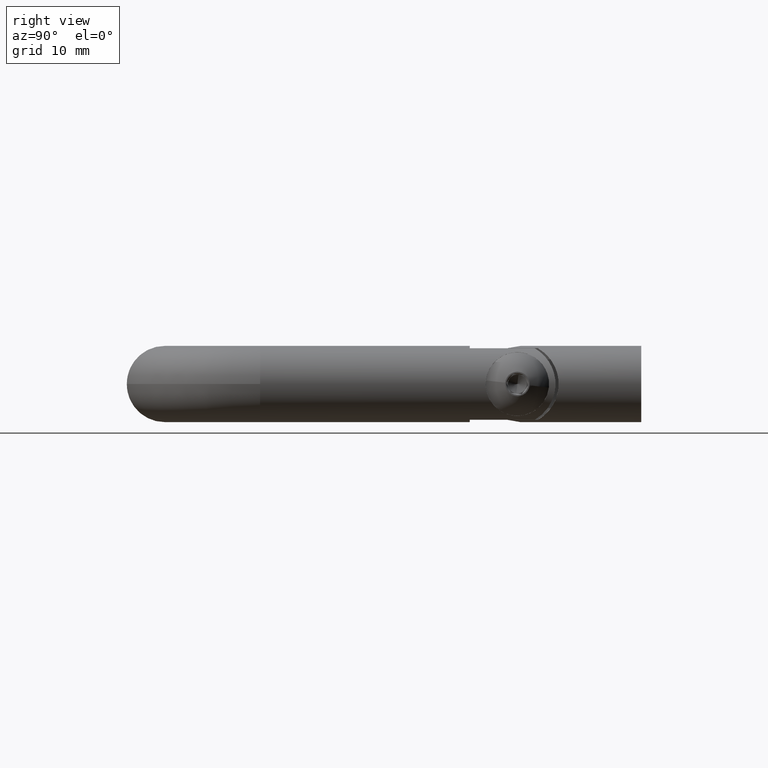
[diagram: clean part render]
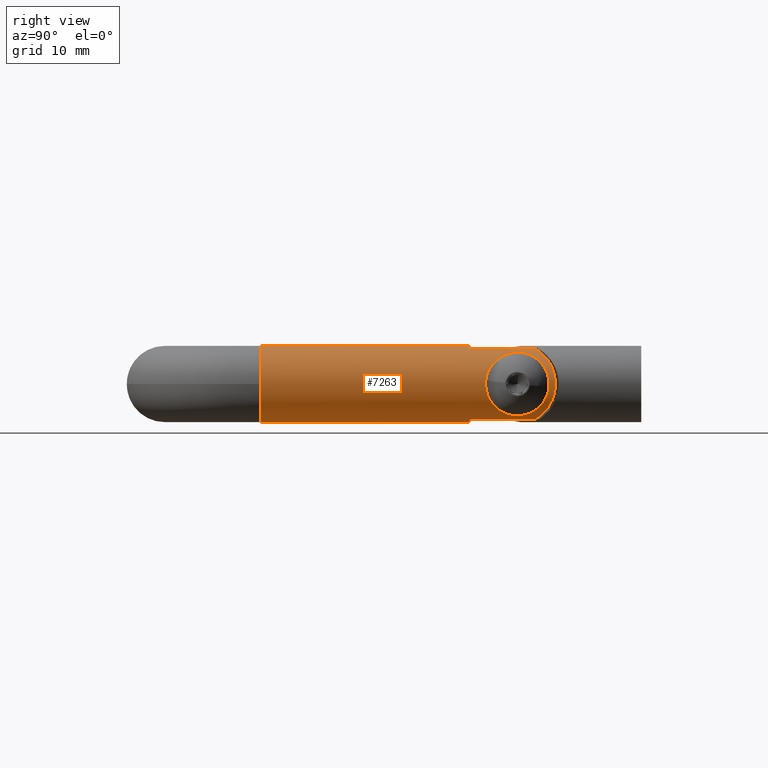
[diagram: same view with one face highlighted and labeled with its STEP entity id]
A machine part, right view. The second image highlights one B-rep face of the part: STEP entity #7263.
In plain terms, the highlighted cylindrical surface (partial cylindrical patch) has radius 6 mm, axis along (0, 1, 0).
Its self-contained STEP definition (entity closure, byte-faithful):
#21 = CARTESIAN_POINT ( 'NONE',  ( 78.56964446881282527, 54.14311813057525313, 4.824095889187161923 ) ) ;
#193 = VERTEX_POINT ( 'NONE', #8357 ) ;
#333 = DIRECTION ( 'NONE',  ( -1.156482317317871291E-14, 0.000000000000000000, -1.000000000000000000 ) ) ;
#396 = CARTESIAN_POINT ( 'NONE',  ( 80.76249996797402275, 60.21302730763526512, -1.702739235666504758 ) ) ;
#453 = AXIS2_PLACEMENT_3D ( 'NONE', #12255, #14675, #333 ) ;
#472 = B_SPLINE_CURVE_WITH_KNOTS ( 'NONE', 3,
 ( #1207, #2744, #14672, #7177, #12292, #21, #10800, #3852, #10205, #7683, #7785, #14871, #625, #1728, #4147, #11474, #4295, #7737, #11414, #1887, #1780, #5467, #6508, #522, #3052, #13810, #4245, #6461, #6657, #13604, #15026, #12544, #12599, #5418, #573, #12492, #10253, #10098, #10155, #13761, #4199, #8851, #7625 ),
 .UNSPECIFIED., .F., .F.,
 ( 4, 2, 2, 2, 2, 2, 2, 2, 2, 2, 1, 2, 2, 2, 2, 2, 2, 2, 2, 2, 2, 4 ),
 ( 0.01672688833371068634, 0.01724946163370980057, 0.01777203493370891133, 0.01881718153370712937, 0.01986232813370535089, 0.02090747473370356546, 0.02195262133370178698, 0.02299776793370000155, 0.02404291453369822307, 0.02456548783369733036, 0.02508806113369643764, 0.02561063443369554493, 0.02613320773369465222, 0.02717835433369286333, 0.02822350093369107443, 0.02926864753368928207, 0.03031379413368749318, 0.03135894073368570428, 0.03188151403368481851, 0.03240408733368392580, 0.03292666063368304002, 0.03344923393368215425 ),
 .UNSPECIFIED. ) ;
#522 = CARTESIAN_POINT ( 'NONE',  ( 80.94105680780467083, 50.57084699521421101, -0.8562631994393302692 ) ) ;
#569 = CARTESIAN_POINT ( 'NONE',  ( 79.60493739223004184, 60.23913157878650537, 3.857923218270355115 ) ) ;
#573 = CARTESIAN_POINT ( 'NONE',  ( 78.78079653344097721, 53.68065238534261852, -4.659924885212107348 ) ) ;
#622 = CARTESIAN_POINT ( 'NONE',  ( 80.43033175023697368, 60.97782991503839867, 2.570958540352991761 ) ) ;
#625 = CARTESIAN_POINT ( 'NONE',  ( 80.13219729960363225, 51.58178703072687910, 3.122079371656534263 ) ) ;
#662 = B_SPLINE_CURVE_WITH_KNOTS ( 'NONE', 3,
 ( #2365, #1182, #10780, #13260, #6009, #3605, #4813, #13160, #6075, #13371, #14534, #13419, #6228, #396, #14579, #2720, #8756, #9971, #2809, #2759, #4985, #7409, #14631, #3911, #7510, #10222, #8002, #1912, #11637, #4260, #9123, #4409, #6766, #12659, #11435, #15140, #892, #12768, #3268, #5635, #13884 ),
 .UNSPECIFIED., .F., .F.,
 ( 4, 2, 2, 2, 2, 2, 2, 2, 2, 1, 2, 2, 2, 2, 2, 2, 2, 2, 2, 2, 4 ),
 ( 6.992893892674702526E-18, 0.001045430520856925486, 0.002090861041713844033, 0.003136291562570763230, 0.004181722083427681126, 0.005227152604284599456, 0.006272583125141519521, 0.007318013645998437851, 0.007840728906426893546, 0.008363444166855351844, 0.008886159427283808407, 0.009408874687712268439, 0.01045430520856918157, 0.01149973572942609990, 0.01254516625028301476, 0.01359059677113993135, 0.01463602729199684968, 0.01515874255242530798, 0.01568145781285376628, 0.01620417307328222631, 0.01672688833371068634 ),
 .UNSPECIFIED. ) ;
#892 = CARTESIAN_POINT ( 'NONE',  ( 78.42394218862385458, 56.36495315353341340, 4.927495263026903771 ) ) ;
#1182 = CARTESIAN_POINT ( 'NONE',  ( 78.31662479035540514, 55.85442751033924935, -4.999999999999991118 ) ) ;
#1207 = CARTESIAN_POINT ( 'NONE',  ( 78.31662479035540514, 55.50000000000000000, 4.999999999999997335 ) ) ;
#1507 = ORIENTED_EDGE ( 'NONE', *, *, #3805, .F. ) ;
#1524 = VERTEX_POINT ( 'NONE', #12468 ) ;
#1573 = CARTESIAN_POINT ( 'NONE',  ( 78.31662479035540514, 55.50000000000000000, 4.999999999999997335 ) ) ;
#1723 = AXIS2_PLACEMENT_3D ( 'NONE', #9105, #7986, #12747 ) ;
#1725 = CARTESIAN_POINT ( 'NONE',  ( 78.99877538578907377, 59.71477323524389647, 4.482573887824088388 ) ) ;
#1728 = CARTESIAN_POINT ( 'NONE',  ( 80.41342029855486828, 51.22003936007263292, 2.604171537394567082 ) ) ;
#1780 = CARTESIAN_POINT ( 'NONE',  ( 81.00752931845198646, 50.49097257033029962, 0.01398763226764539701 ) ) ;
#1824 = CARTESIAN_POINT ( 'NONE',  ( 79.41144255617606973, 60.06948789329071303, 4.077112681709158970 ) ) ;
#1848 = CIRCLE ( 'NONE', #10844, 6.000000000000000888 ) ;
#1867 = DIRECTION ( 'NONE',  ( 0.000000000000000000, 0.000000000000000000, 1.000000000000000000 ) ) ;
#1887 = CARTESIAN_POINT ( 'NONE',  ( 80.99163599324140250, 50.51002911488170355, 0.3614967748330338293 ) ) ;
#1912 = CARTESIAN_POINT ( 'NONE',  ( 79.97998818457929815, 59.21797357839403730, 3.357374974447950855 ) ) ;
#1946 = CARTESIAN_POINT ( 'NONE',  ( 80.88461334817864667, 61.39363355916327691, -1.183149345556920862 ) ) ;
#2365 = CARTESIAN_POINT ( 'NONE',  ( 78.31662479035540514, 55.49999999999999289, -4.999999999999990230 ) ) ;
#2457 = LINE ( 'NONE', #9819, #8406 ) ;
#2511 = EDGE_CURVE ( 'NONE', #7884, #1524, #3246, .T. ) ;
#2565 = ORIENTED_EDGE ( 'NONE', *, *, #7775, .F. ) ;
#2584 = ORIENTED_EDGE ( 'NONE', *, *, #3465, .T. ) ;
#2703 = CARTESIAN_POINT ( 'NONE',  ( 77.04999999999999716, 58.23303263206547342, -5.638927202934976179 ) ) ;
#2720 = CARTESIAN_POINT ( 'NONE',  ( 80.93828779902433723, 60.42581642856095669, -0.8751525092403373840 ) ) ;
#2744 = CARTESIAN_POINT ( 'NONE',  ( 78.31662479035543356, 55.32513115004067572, 4.999999999999997335 ) ) ;
#2759 = CARTESIAN_POINT ( 'NONE',  ( 80.99279500167763501, 60.49136166238699275, 0.3416307806136162362 ) ) ;
#2809 = CARTESIAN_POINT ( 'NONE',  ( 81.00753718262251368, 60.50903695885672562, -0.005635498106200721898 ) ) ;
#2929 = VERTEX_POINT ( 'NONE', #14001 ) ;
#2945 = CARTESIAN_POINT ( 'NONE',  ( 78.77843717462043571, 59.52871563248839948, 4.669453831606780625 ) ) ;
#2993 = CARTESIAN_POINT ( 'NONE',  ( 80.77373707482087184, 61.29159514345955273, 1.664393614781527919 ) ) ;
#3052 = CARTESIAN_POINT ( 'NONE',  ( 80.85326350864377787, 50.67690274763923952, -1.362599331968969540 ) ) ;
#3095 = VERTEX_POINT ( 'NONE', #7303 ) ;
#3097 = CARTESIAN_POINT ( 'NONE',  ( 78.98951770627891733, 59.70689837316662363, -4.490961390927731500 ) ) ;
#3147 = CARTESIAN_POINT ( 'NONE',  ( 77.58558830590295941, 58.59282142245436376, -5.421607850762936387 ) ) ;
#3181 = CARTESIAN_POINT ( 'NONE',  ( 75.00000000000000000, 15.00000000000000000, 0.000000000000000000 ) ) ;
#3246 = CIRCLE ( 'NONE', #1723, 6.000000000000000888 ) ;
#3268 = CARTESIAN_POINT ( 'NONE',  ( 78.33098887049476389, 55.85267277924921814, 4.990547689934637710 ) ) ;
#3337 = LINE ( 'NONE', #15153, #15330 ) ;
#3360 = EDGE_CURVE ( 'NONE', #193, #7884, #1848, .T. ) ;
#3465 = EDGE_CURVE ( 'NONE', #3095, #12756, #10633, .T. ) ;
#3471 = CARTESIAN_POINT ( 'NONE',  ( 77.04999999999999716, 48.00000000000000711, -5.638927202934976179 ) ) ;
#3605 = CARTESIAN_POINT ( 'NONE',  ( 78.99946199909528843, 57.74910038324857453, -4.476774782291061072 ) ) ;
#3692 = CARTESIAN_POINT ( 'NONE',  ( 75.00000000000000000, 48.00000000000000711, 6.000000000000000888 ) ) ;
#3805 = EDGE_CURVE ( 'NONE', #8367, #12756, #3337, .T. ) ;
#3852 = CARTESIAN_POINT ( 'NONE',  ( 79.00059005094092868, 53.24865208510431103, 4.475837650736061768 ) ) ;
#3911 = CARTESIAN_POINT ( 'NONE',  ( 80.76573293361045103, 60.21697571471901256, 1.691936417124789926 ) ) ;
#3986 = EDGE_CURVE ( 'NONE', #193, #9938, #7453, .T. ) ;
#4047 = CARTESIAN_POINT ( 'NONE',  ( 77.32647574005130764, 58.40834025546644881, -5.538416015840695650 ) ) ;
#4147 = CARTESIAN_POINT ( 'NONE',  ( 80.54171680217332607, 51.05962648081074917, 2.322808007251725204 ) ) ;
#4199 = CARTESIAN_POINT ( 'NONE',  ( 78.33120164718344824, 55.14522985451802839, -4.990406850167092401 ) ) ;
#4245 = CARTESIAN_POINT ( 'NONE',  ( 80.55048634599111779, 51.04870486333651769, -2.301757001450119411 ) ) ;
#4260 = CARTESIAN_POINT ( 'NONE',  ( 79.49449696649810448, 58.53956904479053946, 3.981965420189332416 ) ) ;
#4276 = DIRECTION ( 'NONE',  ( 0.000000000000000000, 1.000000000000000000, 0.000000000000000000 ) ) ;
#4277 = VECTOR ( 'NONE', #4584, 1000.000000000000000 ) ;
#4295 = CARTESIAN_POINT ( 'NONE',  ( 80.84721648328834931, 50.68423454477548518, 1.388264819709663866 ) ) ;
#4343 = CARTESIAN_POINT ( 'NONE',  ( 81.00009844872207054, 61.50009087574293432, 0.3421983614687544306 ) ) ;
#4368 = DIRECTION ( 'NONE',  ( 0.000000000000000000, 1.000000000000000000, 0.000000000000000000 ) ) ;
#4409 = CARTESIAN_POINT ( 'NONE',  ( 79.00123582191973526, 57.75219991349260340, 4.475191178565311567 ) ) ;
#4424 = AXIS2_PLACEMENT_3D ( 'NONE', #3181, #9042, #1867 ) ;
#4483 = ORIENTED_EDGE ( 'NONE', *, *, #3360, .T. ) ;
#4513 = VERTEX_POINT ( 'NONE', #13211 ) ;
#4584 = DIRECTION ( 'NONE',  ( 0.000000000000000000, 1.000000000000000000, 0.000000000000000000 ) ) ;
#4813 = CARTESIAN_POINT ( 'NONE',  ( 79.16362149273041382, 58.02466782106073140, -4.326682873493571613 ) ) ;
#4985 = CARTESIAN_POINT ( 'NONE',  ( 80.96290752613262498, 60.45543797033351296, 0.6885037089124100840 ) ) ;
#5005 = EDGE_CURVE ( 'NONE', #14981, #4513, #11562, .T. ) ;
#5327 = DIRECTION ( 'NONE',  ( -1.608122649676636601E-16, 1.000000000000000000, 0.000000000000000000 ) ) ;
#5370 = CARTESIAN_POINT ( 'NONE',  ( 77.32642119111511647, 58.40830566709947647, 5.538435846797047368 ) ) ;
#5418 = CARTESIAN_POINT ( 'NONE',  ( 79.00276532183183065, 53.24510676874041337, -4.473830487483189344 ) ) ;
#5467 = CARTESIAN_POINT ( 'NONE',  ( 80.99324120834242535, 50.50810279641101630, -0.3340972626494395081 ) ) ;
#5525 = CARTESIAN_POINT ( 'NONE',  ( 78.31784475277899560, 59.15222485486253134, -5.007104783550220262 ) ) ;
#5635 = CARTESIAN_POINT ( 'NONE',  ( 78.31662479035539093, 55.67491635421763618, 4.999999999999998224 ) ) ;
#6009 = CARTESIAN_POINT ( 'NONE',  ( 78.70365011376621567, 57.16726735016375471, -4.724424257871414845 ) ) ;
#6075 = CARTESIAN_POINT ( 'NONE',  ( 79.65635461493464220, 58.77182506907724502, -3.793513976550108246 ) ) ;
#6228 = CARTESIAN_POINT ( 'NONE',  ( 80.54473996715996975, 59.94413791696843674, -2.315509767234325000 ) ) ;
#6445 = CIRCLE ( 'NONE', #11159, 6.000000000000000888 ) ;
#6461 = CARTESIAN_POINT ( 'NONE',  ( 80.42273362792440139, 51.20823634885367426, -2.585300678170793454 ) ) ;
#6503 = CARTESIAN_POINT ( 'NONE',  ( 80.55945121141415655, 61.09554160121457045, 2.280076345649893810 ) ) ;
#6508 = CARTESIAN_POINT ( 'NONE',  ( 80.96362208990275633, 50.54370239584010704, -0.6824754435932265384 ) ) ;
#6606 = CARTESIAN_POINT ( 'NONE',  ( 80.85844407995256233, 61.36952809658154706, 1.338085959624542465 ) ) ;
#6657 = CARTESIAN_POINT ( 'NONE',  ( 80.13811360512565329, 51.57400883125597346, -3.112813546744356952 ) ) ;
#6693 = CARTESIAN_POINT ( 'NONE',  ( 80.97085782367477691, 61.47307224474969445, 0.6787473187699163413 ) ) ;
#6766 = CARTESIAN_POINT ( 'NONE',  ( 78.77940320567886090, 57.31645745285332083, 4.661053256050060156 ) ) ;
#6985 = CARTESIAN_POINT ( 'NONE',  ( 81.00000000000000000, 15.00000000000000178, 0.000000000000000000 ) ) ;
#7177 = CARTESIAN_POINT ( 'NONE',  ( 78.38377033684793105, 54.80809734858541304, 4.954909692858102233 ) ) ;
#7263 = ADVANCED_FACE ( 'NONE', ( #12237, #12594 ), #14500, .T. ) ;
#7303 = CARTESIAN_POINT ( 'NONE',  ( 77.04999999999999716, 58.23303263206547342, -5.638927202934976179 ) ) ;
#7409 = CARTESIAN_POINT ( 'NONE',  ( 80.94015369918930958, 60.42806506373631237, 0.8625399697430902179 ) ) ;
#7453 = LINE ( 'NONE', #11647, #4277 ) ;
#7480 = ORIENTED_EDGE ( 'NONE', *, *, #13411, .F. ) ;
#7510 = CARTESIAN_POINT ( 'NONE',  ( 80.54841731499004709, 59.94872097718103987, 2.306813906675488912 ) ) ;
#7558 = VECTOR ( 'NONE', #4368, 1000.000000000000000 ) ;
#7581 = CARTESIAN_POINT ( 'NONE',  ( 75.00000000000000000, 15.00000000000000000, 0.000000000000000000 ) ) ;
#7625 = CARTESIAN_POINT ( 'NONE',  ( 78.31662479035540514, 55.49999999999999289, -4.999999999999990230 ) ) ;
#7677 = CARTESIAN_POINT ( 'NONE',  ( 80.55677705206225880, 61.09310284586258177, -2.286364011349292458 ) ) ;
#7683 = CARTESIAN_POINT ( 'NONE',  ( 79.48902736017259940, 52.46858118539158511, 3.988017981553138025 ) ) ;
#7734 = CARTESIAN_POINT ( 'NONE',  ( 80.97045966909992387, 61.47270360711306125, -0.6838697723011444296 ) ) ;
#7737 = CARTESIAN_POINT ( 'NONE',  ( 80.93719115413888687, 50.57550480961663197, 0.8826472411079067104 ) ) ;
#7775 = EDGE_CURVE ( 'NONE', #9938, #8367, #6445, .T. ) ;
#7783 = CARTESIAN_POINT ( 'NONE',  ( 80.42630140854573995, 60.97416503680972255, -2.579526199146278120 ) ) ;
#7785 = CARTESIAN_POINT ( 'NONE',  ( 79.65533243476890846, 52.22957258071004816, 3.794926501452739576 ) ) ;
#7884 = VERTEX_POINT ( 'NONE', #6985 ) ;
#7922 = DIRECTION ( 'NONE',  ( -0.000000000000000000, 1.000000000000000000, -0.000000000000000000 ) ) ;
#7986 = DIRECTION ( 'NONE',  ( -1.608122649676636601E-16, 1.000000000000000000, 0.000000000000000000 ) ) ;
#8002 = CARTESIAN_POINT ( 'NONE',  ( 80.13634868044395887, 59.42367744661203233, 3.115638558501452327 ) ) ;
#8357 = CARTESIAN_POINT ( 'NONE',  ( 75.00000000000000000, 15.00000000000000000, 6.000000000000000888 ) ) ;
#8367 = VERTEX_POINT ( 'NONE', #14641 ) ;
#8406 = VECTOR ( 'NONE', #14685, 1000.000000000000000 ) ;
#8756 = CARTESIAN_POINT ( 'NONE',  ( 80.96134257281218538, 60.45355535355899690, -0.7021290761316435480 ) ) ;
#8851 = CARTESIAN_POINT ( 'NONE',  ( 78.31662479035541935, 55.32283437302307050, -4.999999999999991118 ) ) ;
#8896 = CARTESIAN_POINT ( 'NONE',  ( 78.77193348060454525, 59.52331290360293536, -4.674581257705237469 ) ) ;
#9042 = DIRECTION ( 'NONE',  ( 0.000000000000000000, 1.000000000000000000, 0.000000000000000000 ) ) ;
#9105 = CARTESIAN_POINT ( 'NONE',  ( 75.00000000000000000, 15.00000000000000000, 0.000000000000000000 ) ) ;
#9123 = CARTESIAN_POINT ( 'NONE',  ( 79.16524876810535716, 58.02740465624153643, 4.325188353036318212 ) ) ;
#9819 = CARTESIAN_POINT ( 'NONE',  ( 77.04999999999999716, 15.00000000000000000, -5.638927202934976179 ) ) ;
#9938 = VERTEX_POINT ( 'NONE', #3692 ) ;
#9971 = CARTESIAN_POINT ( 'NONE',  ( 80.99211974057726593, 60.49055150817682858, -0.3536828021775771935 ) ) ;
#10098 = CARTESIAN_POINT ( 'NONE',  ( 78.52242300165968913, 54.30326602784063539, -4.857585321784197774 ) ) ;
#10152 = CARTESIAN_POINT ( 'NONE',  ( 79.40610442917926548, 60.06481954342288532, -4.083041697397132630 ) ) ;
#10155 = CARTESIAN_POINT ( 'NONE',  ( 78.42459081441097624, 54.63251475883035368, -4.927045434627784104 ) ) ;
#10203 = CARTESIAN_POINT ( 'NONE',  ( 80.12723040793159157, 60.70389275553743857, -3.132125593339024849 ) ) ;
#10205 = CARTESIAN_POINT ( 'NONE',  ( 79.16204732082883311, 52.97794304386236064, 4.328165449789405983 ) ) ;
#10222 = CARTESIAN_POINT ( 'NONE',  ( 80.42048484546207021, 59.78891861636910932, 2.589908383405748804 ) ) ;
#10253 = CARTESIAN_POINT ( 'NONE',  ( 78.58136652707459291, 54.14125718385471941, -4.814605012708528697 ) ) ;
#10272 = CARTESIAN_POINT ( 'NONE',  ( 75.00000000000000000, 15.00000000000000000, -6.000000000000000888 ) ) ;
#10307 = CARTESIAN_POINT ( 'NONE',  ( 79.96495920739128849, 60.55822554818882253, 3.382040805988075327 ) ) ;
#10633 = B_SPLINE_CURVE_WITH_KNOTS ( 'NONE', 3,
 ( #2703, #4047, #3147, #14912, #5525, #8896, #3097, #10152, #12686, #15023, #10203, #7783, #7677, #13856, #14965, #11522, #1946, #7734, #13758, #4343, #6693, #6606, #2993, #6503, #622, #14869, #10307, #569, #1824, #1725, #2945, #11326, #12489, #11411, #5370, #12596 ),
 .UNSPECIFIED., .F., .F.,
 ( 4, 2, 2, 2, 2, 2, 2, 2, 2, 2, 2, 2, 2, 2, 2, 2, 2, 4 ),
 ( -0.008115971088278993092, -0.007101686280511517943, -0.006087401472744041926, -0.005073116664976565909, -0.004058831857209090760, -0.003044547049441615610, -0.002030262241674139594, -0.001523119837790392478, -0.001015977433906644495, -1.692626139139855046E-06, 0.001012592181628364785, 0.002026876989395867690, 0.003041161797163374064, 0.004055446604930876969, 0.005069731412698381609, 0.006084016220465886249, 0.007098301028233390889, 0.008112585836000897263 ),
 .UNSPECIFIED. ) ;
#10766 = LINE ( 'NONE', #10272, #7558 ) ;
#10780 = CARTESIAN_POINT ( 'NONE',  ( 78.37402869857491794, 56.19617594192158805, -4.962909166221755264 ) ) ;
#10800 = CARTESIAN_POINT ( 'NONE',  ( 78.70225874158320778, 53.83549813221880243, 4.725581831034634916 ) ) ;
#10844 = AXIS2_PLACEMENT_3D ( 'NONE', #7581, #5327, #13600 ) ;
#11025 = CARTESIAN_POINT ( 'NONE',  ( 77.04999999999999716, 58.23303263206547342, 5.638927202934976179 ) ) ;
#11159 = AXIS2_PLACEMENT_3D ( 'NONE', #11692, #7922, #12873 ) ;
#11303 = EDGE_CURVE ( 'NONE', #2929, #15090, #662, .T. ) ;
#11326 = CARTESIAN_POINT ( 'NONE',  ( 78.32128109594987109, 59.15494716160205968, 5.004945399277305640 ) ) ;
#11392 = EDGE_CURVE ( 'NONE', #1524, #4513, #10766, .T. ) ;
#11411 = CARTESIAN_POINT ( 'NONE',  ( 77.58604344027325794, 58.59312464939349496, 5.421444011750459424 ) ) ;
#11414 = CARTESIAN_POINT ( 'NONE',  ( 80.96054567114879319, 50.54740348335607791, 0.7087151020470353613 ) ) ;
#11435 = CARTESIAN_POINT ( 'NONE',  ( 78.58049110549690397, 56.85641434506446501, 4.815251710738001734 ) ) ;
#11474 = CARTESIAN_POINT ( 'NONE',  ( 80.76057604253834654, 50.78931764854674213, 1.709334903457068400 ) ) ;
#11522 = CARTESIAN_POINT ( 'NONE',  ( 80.84880240367400006, 61.36067736358476310, -1.348739690468865771 ) ) ;
#11562 = CIRCLE ( 'NONE', #453, 6.000000000000000888 ) ;
#11637 = CARTESIAN_POINT ( 'NONE',  ( 79.65983022920585199, 58.77674579058358972, 3.789225682455223954 ) ) ;
#11639 = ORIENTED_EDGE ( 'NONE', *, *, #3986, .F. ) ;
#11647 = CARTESIAN_POINT ( 'NONE',  ( 75.00000000000000000, 15.00000000000000000, 6.000000000000000888 ) ) ;
#11692 = CARTESIAN_POINT ( 'NONE',  ( 75.00000000000000000, 48.00000000000000711, 0.000000000000000000 ) ) ;
#12237 = FACE_BOUND ( 'NONE', #13699, .T. ) ;
#12255 = CARTESIAN_POINT ( 'NONE',  ( 75.00000000000000000, 48.00000000000000711, 0.000000000000000000 ) ) ;
#12292 = CARTESIAN_POINT ( 'NONE',  ( 78.42354928154101401, 54.63664527765137535, 4.927765823607065165 ) ) ;
#12468 = CARTESIAN_POINT ( 'NONE',  ( 75.00000000000000000, 15.00000000000000000, -6.000000000000000888 ) ) ;
#12489 = CARTESIAN_POINT ( 'NONE',  ( 78.08359733863085239, 58.96629507448828633, 5.154716607216535351 ) ) ;
#12492 = CARTESIAN_POINT ( 'NONE',  ( 78.71048360099786123, 53.83036399402448779, -4.715815844196486140 ) ) ;
#12544 = CARTESIAN_POINT ( 'NONE',  ( 79.49665282648089715, 52.45721081570676603, -3.979586389633435140 ) ) ;
#12594 = FACE_OUTER_BOUND ( 'NONE', #14429, .T. ) ;
#12596 = CARTESIAN_POINT ( 'NONE',  ( 77.04999999999999716, 58.23303263206547342, 5.638927202934976179 ) ) ;
#12599 = CARTESIAN_POINT ( 'NONE',  ( 79.16624883669020107, 52.97090752494579391, -4.324276252187392977 ) ) ;
#12659 = CARTESIAN_POINT ( 'NONE',  ( 78.70921893381378709, 57.16680785272836829, 4.716806175299656623 ) ) ;
#12686 = CARTESIAN_POINT ( 'NONE',  ( 79.60087438144574890, 60.23555836410938014, -3.862762210858933898 ) ) ;
#12747 = DIRECTION ( 'NONE',  ( 0.000000000000000000, 0.000000000000000000, -1.000000000000000000 ) ) ;
#12756 = VERTEX_POINT ( 'NONE', #11025 ) ;
#12768 = CARTESIAN_POINT ( 'NONE',  ( 78.38477602780612585, 56.19685005006422074, 4.954224898252074460 ) ) ;
#12873 = DIRECTION ( 'NONE',  ( -4.625929269271484533E-15, 0.000000000000000000, -1.000000000000000000 ) ) ;
#13153 = ORIENTED_EDGE ( 'NONE', *, *, #14750, .F. ) ;
#13160 = CARTESIAN_POINT ( 'NONE',  ( 79.49125128978381838, 58.53472269243134463, -3.985547700696146833 ) ) ;
#13211 = CARTESIAN_POINT ( 'NONE',  ( 75.00000000000000000, 48.00000000000000711, -6.000000000000000888 ) ) ;
#13260 = CARTESIAN_POINT ( 'NONE',  ( 78.57068318773804094, 56.86028295236632601, -4.823355535701249863 ) ) ;
#13371 = CARTESIAN_POINT ( 'NONE',  ( 79.97719595761850542, 59.21425370473708938, -3.361533428328505657 ) ) ;
#13411 = EDGE_CURVE ( 'NONE', #15090, #2929, #472, .T. ) ;
#13419 = CARTESIAN_POINT ( 'NONE',  ( 80.41694751923800766, 59.78443774847924885, -2.597096451431598840 ) ) ;
#13502 = ORIENTED_EDGE ( 'NONE', *, *, #2511, .T. ) ;
#13600 = DIRECTION ( 'NONE',  ( 0.000000000000000000, 0.000000000000000000, -1.000000000000000000 ) ) ;
#13604 = CARTESIAN_POINT ( 'NONE',  ( 79.98228478960308507, 51.77895888540784597, -3.353977028320513920 ) ) ;
#13699 = EDGE_LOOP ( 'NONE', ( #15294, #7480 ) ) ;
#13758 = CARTESIAN_POINT ( 'NONE',  ( 80.99990105715720290, 61.49990866814569301, -0.3456420363220197856 ) ) ;
#13761 = CARTESIAN_POINT ( 'NONE',  ( 78.38528775169305618, 54.80062127306405984, -4.953876439984084890 ) ) ;
#13810 = CARTESIAN_POINT ( 'NONE',  ( 80.76694820181330670, 50.78154460876787368, -1.687688480840238370 ) ) ;
#13856 = CARTESIAN_POINT ( 'NONE',  ( 80.71736392598452881, 61.24001466609917088, -1.827035204239527699 ) ) ;
#13884 = CARTESIAN_POINT ( 'NONE',  ( 78.31662479035540514, 55.50000000000000000, 4.999999999999997335 ) ) ;
#14001 = CARTESIAN_POINT ( 'NONE',  ( 78.31662479035540514, 55.49999999999999289, -4.999999999999990230 ) ) ;
#14429 = EDGE_LOOP ( 'NONE', ( #4483, #13502, #15170, #15506, #13153, #2584, #1507, #2565, #11639 ) ) ;
#14500 = CYLINDRICAL_SURFACE ( 'NONE', #4424, 6.000000000000000888 ) ;
#14534 = CARTESIAN_POINT ( 'NONE',  ( 80.13394517982507637, 59.42052031034967285, -3.119429001398843049 ) ) ;
#14579 = CARTESIAN_POINT ( 'NONE',  ( 80.84921889650863136, 60.31819299267185386, -1.379584681927825685 ) ) ;
#14631 = CARTESIAN_POINT ( 'NONE',  ( 80.85172309602714336, 60.32123017520225261, 1.369285026942964834 ) ) ;
#14641 = CARTESIAN_POINT ( 'NONE',  ( 77.04999999999999716, 48.00000000000000711, 5.638927202934976179 ) ) ;
#14672 = CARTESIAN_POINT ( 'NONE',  ( 78.33052573208831859, 55.15182010597273887, 4.990854646732249655 ) ) ;
#14675 = DIRECTION ( 'NONE',  ( -0.000000000000000000, 1.000000000000000000, -0.000000000000000000 ) ) ;
#14685 = DIRECTION ( 'NONE',  ( -0.000000000000000000, -1.000000000000000000, -0.000000000000000000 ) ) ;
#14750 = EDGE_CURVE ( 'NONE', #3095, #14981, #2457, .T. ) ;
#14869 = CARTESIAN_POINT ( 'NONE',  ( 80.13274822841179912, 60.70885732452308048, 3.123015587149889249 ) ) ;
#14871 = CARTESIAN_POINT ( 'NONE',  ( 79.97878890318588674, 51.78356160159773225, 3.359352361267425646 ) ) ;
#14912 = CARTESIAN_POINT ( 'NONE',  ( 78.08140302882577544, 58.96461139483827196, -5.155972648203224651 ) ) ;
#14965 = CARTESIAN_POINT ( 'NONE',  ( 80.76522808234319939, 61.28391452900463321, -1.670249522804988951 ) ) ;
#14981 = VERTEX_POINT ( 'NONE', #3471 ) ;
#15023 = CARTESIAN_POINT ( 'NONE',  ( 79.96131518953912121, 60.55496847156704376, -3.387377829757383552 ) ) ;
#15026 = CARTESIAN_POINT ( 'NONE',  ( 79.66224674867447675, 52.21982774883687739, -3.786261861742582280 ) ) ;
#15090 = VERTEX_POINT ( 'NONE', #1573 ) ;
#15140 = CARTESIAN_POINT ( 'NONE',  ( 78.52165814423278789, 56.69450405257173742, 4.858138902228890998 ) ) ;
#15153 = CARTESIAN_POINT ( 'NONE',  ( 77.04999999999999716, 15.00000000000000000, 5.638927202934976179 ) ) ;
#15170 = ORIENTED_EDGE ( 'NONE', *, *, #11392, .T. ) ;
#15294 = ORIENTED_EDGE ( 'NONE', *, *, #11303, .F. ) ;
#15330 = VECTOR ( 'NONE', #4276, 1000.000000000000000 ) ;
#15506 = ORIENTED_EDGE ( 'NONE', *, *, #5005, .F. ) ;